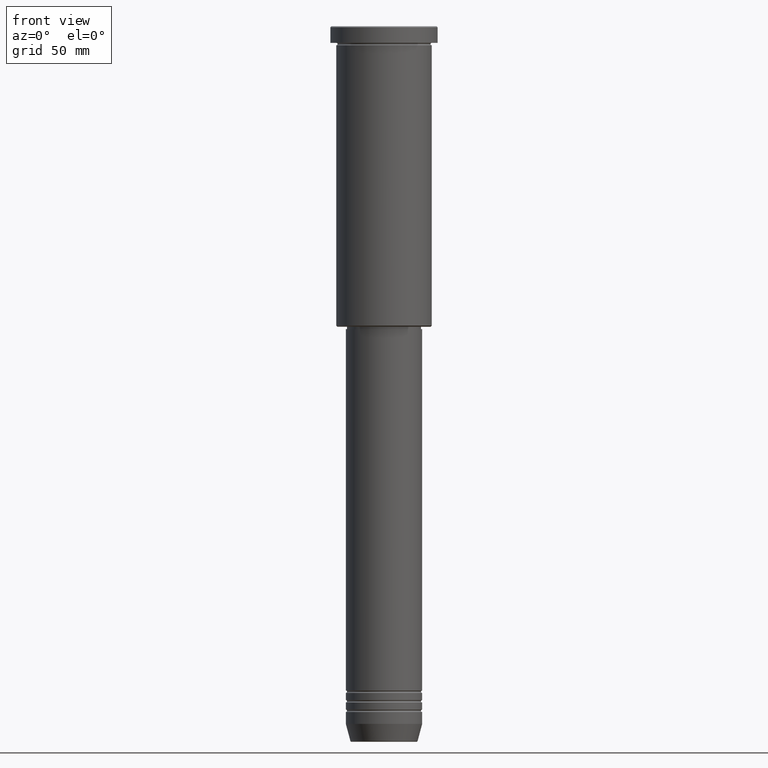
[diagram: clean part render]
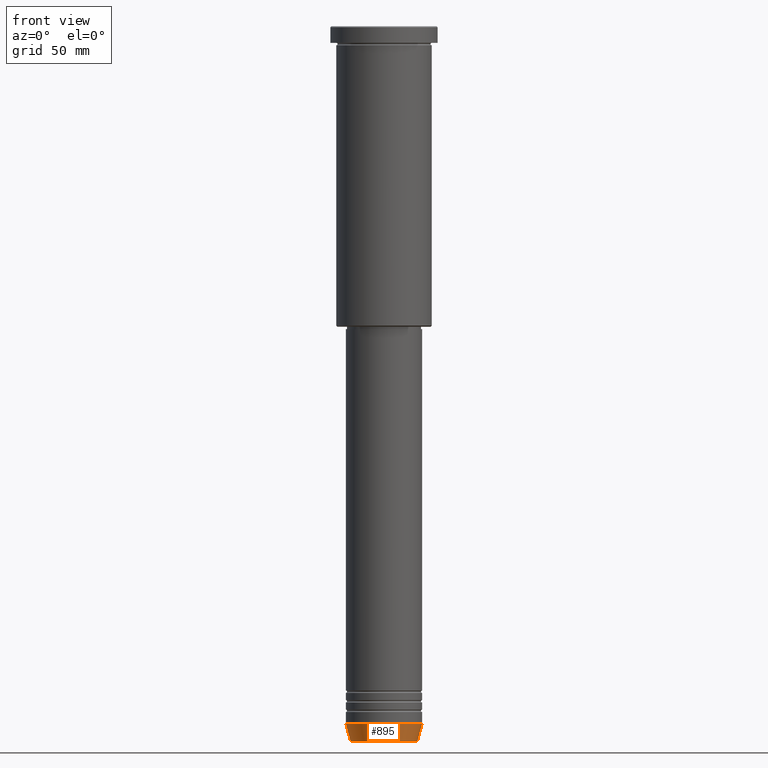
[diagram: same view with one face highlighted and labeled with its STEP entity id]
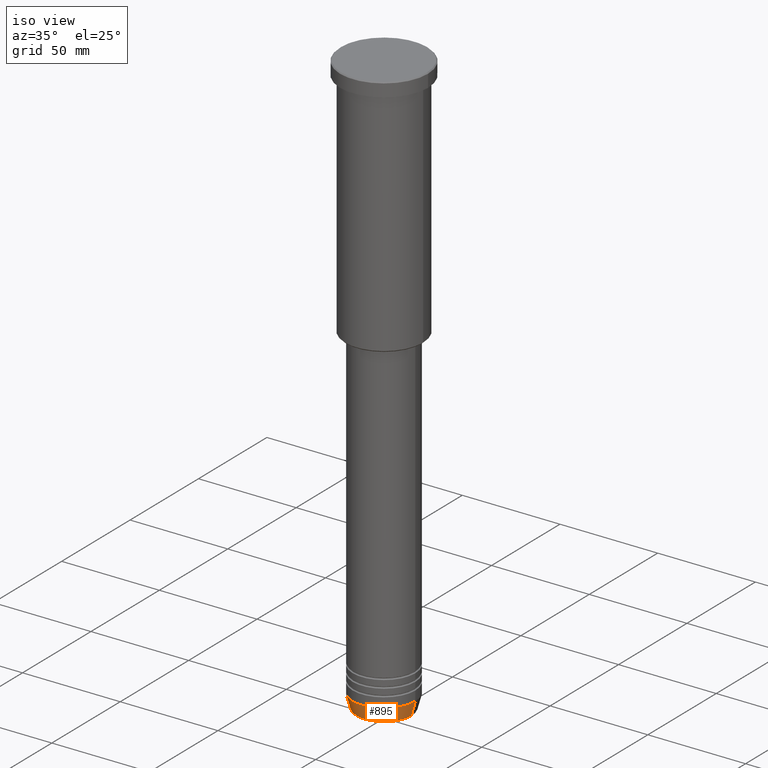
[diagram: same view with one face highlighted and labeled with its STEP entity id]
A machine part, front view. The second image highlights one B-rep face of the part: STEP entity #895.
A second angle (iso view) of the same face is appended — the face is thin or edge-on in the first view.
In plain terms, the highlighted conical surface has half-angle 15 deg.
Its self-contained STEP definition (entity closure, byte-faithful):
#36 = AXIS2_PLACEMENT_3D ( 'NONE', #460, #644, #621 ) ;
#43 = CARTESIAN_POINT ( 'NONE',  ( 0.000000000000000000, 0.000000000000000000, -292.5000000000000000 ) ) ;
#74 = CONICAL_SURFACE ( 'NONE', #533, 16.00000000000000000, 0.2617993877991500740 ) ;
#78 = CARTESIAN_POINT ( 'NONE',  ( 16.00000000000000000, 0.000000000000000000, -292.5000000000000000 ) ) ;
#116 = CARTESIAN_POINT ( 'NONE',  ( -16.00000000000000000, 1.959434878635765131E-15, -292.5000000000000000 ) ) ;
#134 = VECTOR ( 'NONE', #222, 1000.000000000000000 ) ;
#137 = VERTEX_POINT ( 'NONE', #556 ) ;
#184 = DIRECTION ( 'NONE',  ( 1.000000000000000000, 0.000000000000000000, 0.000000000000000000 ) ) ;
#187 = CIRCLE ( 'NONE', #943, 16.00000000000000000 ) ;
#192 = LINE ( 'NONE', #116, #134 ) ;
#207 = ORIENTED_EDGE ( 'NONE', *, *, #747, .F. ) ;
#222 = DIRECTION ( 'NONE',  ( -0.2588190451025213501, 3.169619151431772337E-17, 0.9659258262890680902 ) ) ;
#266 = DIRECTION ( 'NONE',  ( 0.2588190451025213501, 0.000000000000000000, 0.9659258262890680902 ) ) ;
#274 = CARTESIAN_POINT ( 'NONE',  ( 14.08968047592161632, 0.000000000000000000, -299.6294095225512137 ) ) ;
#417 = ORIENTED_EDGE ( 'NONE', *, *, #982, .F. ) ;
#460 = CARTESIAN_POINT ( 'NONE',  ( 0.000000000000000000, 0.000000000000000000, -299.6294095225512137 ) ) ;
#533 = AXIS2_PLACEMENT_3D ( 'NONE', #43, #674, #794 ) ;
#556 = CARTESIAN_POINT ( 'NONE',  ( -14.08968047592161632, 1.842461544110200874E-15, -299.6294095225512137 ) ) ;
#560 = EDGE_CURVE ( 'NONE', #855, #875, #846, .T. ) ;
#612 = VECTOR ( 'NONE', #266, 1000.000000000000000 ) ;
#620 = ORIENTED_EDGE ( 'NONE', *, *, #560, .T. ) ;
#621 = DIRECTION ( 'NONE',  ( 1.000000000000000000, 0.000000000000000000, 0.000000000000000000 ) ) ;
#644 = DIRECTION ( 'NONE',  ( -0.000000000000000000, -0.000000000000000000, 1.000000000000000000 ) ) ;
#653 = EDGE_LOOP ( 'NONE', ( #207, #802, #620, #417 ) ) ;
#674 = DIRECTION ( 'NONE',  ( -0.000000000000000000, -0.000000000000000000, 1.000000000000000000 ) ) ;
#747 = EDGE_CURVE ( 'NONE', #137, #1134, #192, .T. ) ;
#794 = DIRECTION ( 'NONE',  ( 1.000000000000000000, 0.000000000000000000, 0.000000000000000000 ) ) ;
#796 = CIRCLE ( 'NONE', #36, 14.08968047592161632 ) ;
#802 = ORIENTED_EDGE ( 'NONE', *, *, #1030, .T. ) ;
#846 = LINE ( 'NONE', #78, #612 ) ;
#855 = VERTEX_POINT ( 'NONE', #274 ) ;
#872 = FACE_OUTER_BOUND ( 'NONE', #653, .T. ) ;
#875 = VERTEX_POINT ( 'NONE', #1123 ) ;
#895 = ADVANCED_FACE ( 'NONE', ( #872 ), #74, .T. ) ;
#909 = DIRECTION ( 'NONE',  ( -0.000000000000000000, -0.000000000000000000, 1.000000000000000000 ) ) ;
#943 = AXIS2_PLACEMENT_3D ( 'NONE', #1092, #909, #184 ) ;
#982 = EDGE_CURVE ( 'NONE', #1134, #875, #187, .T. ) ;
#1030 = EDGE_CURVE ( 'NONE', #137, #855, #796, .T. ) ;
#1039 = CARTESIAN_POINT ( 'NONE',  ( -16.00000000000000000, 1.959434878635765131E-15, -292.5000000000000000 ) ) ;
#1092 = CARTESIAN_POINT ( 'NONE',  ( 0.000000000000000000, 0.000000000000000000, -292.5000000000000000 ) ) ;
#1123 = CARTESIAN_POINT ( 'NONE',  ( 16.00000000000000000, 0.000000000000000000, -292.5000000000000000 ) ) ;
#1134 = VERTEX_POINT ( 'NONE', #1039 ) ;